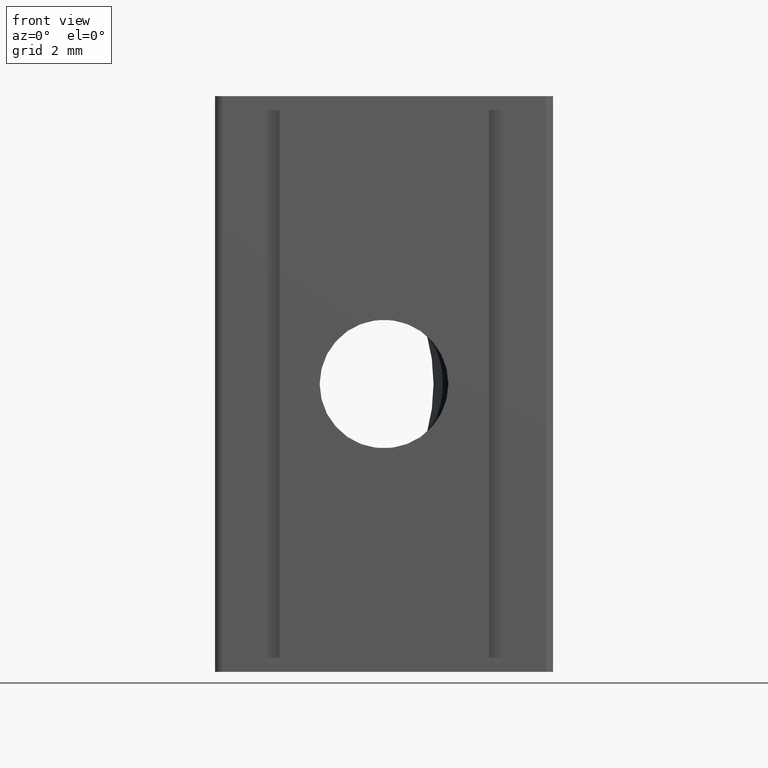
[diagram: clean part render]
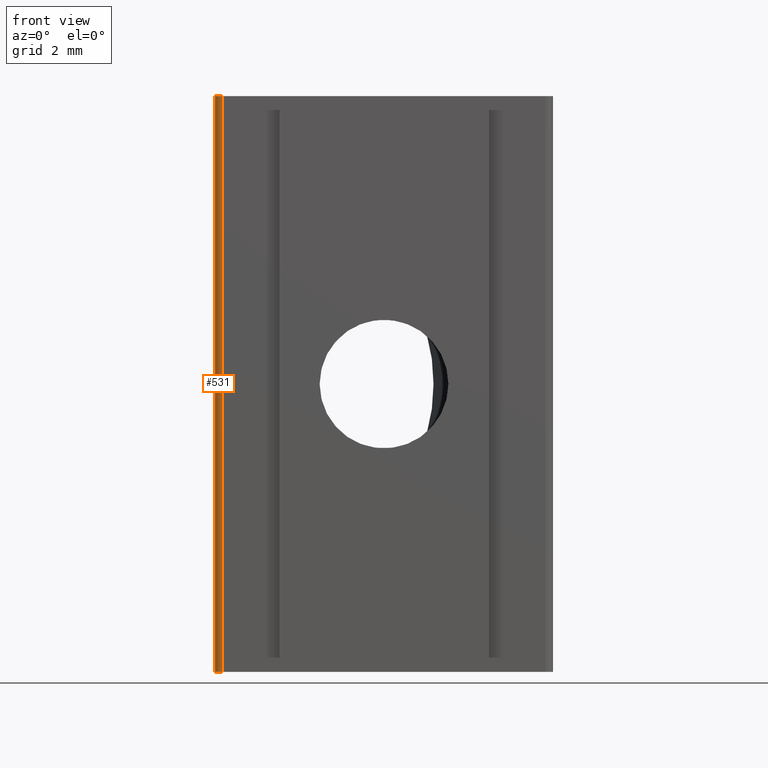
[diagram: same view with one face highlighted and labeled with its STEP entity id]
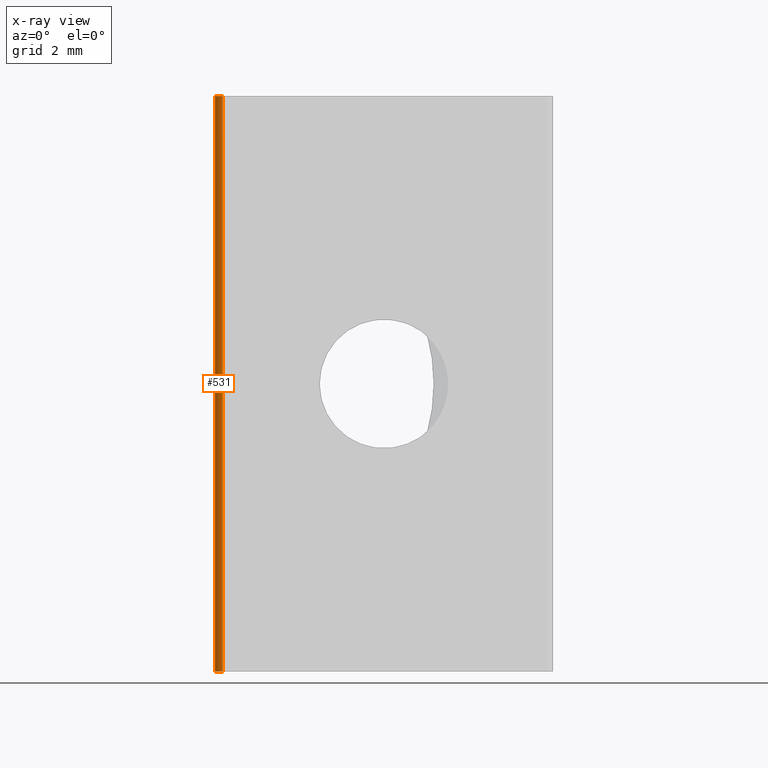
[diagram: x-ray of the same camera — body ghosted, the highlighted face saturated]
A machine part, front view. The second image highlights one B-rep face of the part: STEP entity #531.
The next image is the same camera in x-ray: the body ghosted, the highlighted face saturated — about 0% of this face is hidden behind the body in this view.
In plain terms, the highlighted cylindrical surface (edge-blend (fillet) strip) has radius 0.3 mm, axis along (0, 0, 1).
Its self-contained STEP definition (entity closure, byte-faithful):
#52=FACE_OUTER_BOUND('',#80,.T.);
#80=EDGE_LOOP('',(#438,#439,#440,#441));
#131=LINE('',#857,#185);
#132=LINE('',#858,#186);
#185=VECTOR('',#697,22.);
#186=VECTOR('',#698,22.);
#215=CIRCLE('',#573,0.3);
#218=CIRCLE('',#577,0.3);
#256=VERTEX_POINT('',#842);
#257=VERTEX_POINT('',#844);
#261=VERTEX_POINT('',#854);
#262=VERTEX_POINT('',#855);
#321=EDGE_CURVE('',#257,#256,#215,.T.);
#326=EDGE_CURVE('',#261,#262,#218,.T.);
#327=EDGE_CURVE('',#262,#257,#131,.T.);
#328=EDGE_CURVE('',#256,#261,#132,.T.);
#438=ORIENTED_EDGE('',*,*,#326,.T.);
#439=ORIENTED_EDGE('',*,*,#327,.T.);
#440=ORIENTED_EDGE('',*,*,#321,.T.);
#441=ORIENTED_EDGE('',*,*,#328,.T.);
#512=CYLINDRICAL_SURFACE('',#576,0.3);
#531=ADVANCED_FACE('',(#52),#512,.T.);
#573=AXIS2_PLACEMENT_3D('',#845,#685,#686);
#576=AXIS2_PLACEMENT_3D('',#853,#693,#694);
#577=AXIS2_PLACEMENT_3D('',#856,#695,#696);
#685=DIRECTION('center_axis',(0.,0.,1.));
#686=DIRECTION('ref_axis',(-0.89163237641483,-0.452760096882271,0.));
#693=DIRECTION('center_axis',(0.,0.,1.));
#694=DIRECTION('ref_axis',(-0.89163237641483,-0.452760096882271,0.));
#695=DIRECTION('center_axis',(0.,0.,-1.));
#696=DIRECTION('ref_axis',(-0.89163237641483,-0.452760096882271,0.));
#697=DIRECTION('',(0.,0.,-1.));
#698=DIRECTION('',(0.,0.,1.));
#842=CARTESIAN_POINT('',(-6.15920210335143,3.7268035668145E-18,0.));
#844=CARTESIAN_POINT('',(-6.4014194400288,0.477004976802693,0.));
#845=CARTESIAN_POINT('Origin',(-6.15920210335143,0.3,0.));
#853=CARTESIAN_POINT('Origin',(-6.15920210335143,0.3,0.));
#854=CARTESIAN_POINT('',(-6.15920210335143,3.7268035668145E-18,22.));
#855=CARTESIAN_POINT('',(-6.4014194400288,0.477004976802693,22.));
#856=CARTESIAN_POINT('Origin',(-6.15920210335143,0.3,22.));
#857=CARTESIAN_POINT('',(-6.4014194400288,0.477004976802692,0.));
#858=CARTESIAN_POINT('',(-6.15920210335143,0.,0.));